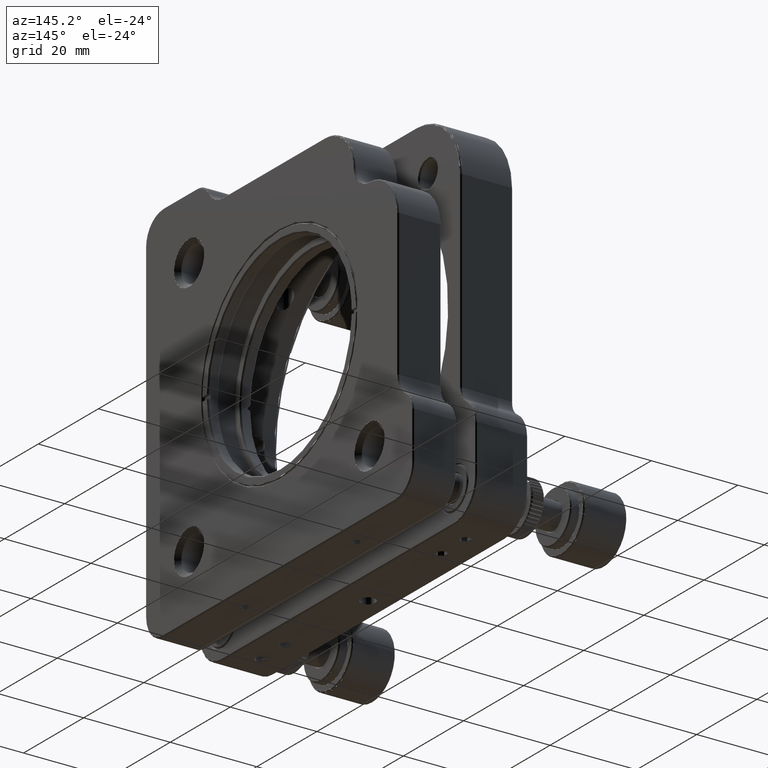
[diagram: clean part render]
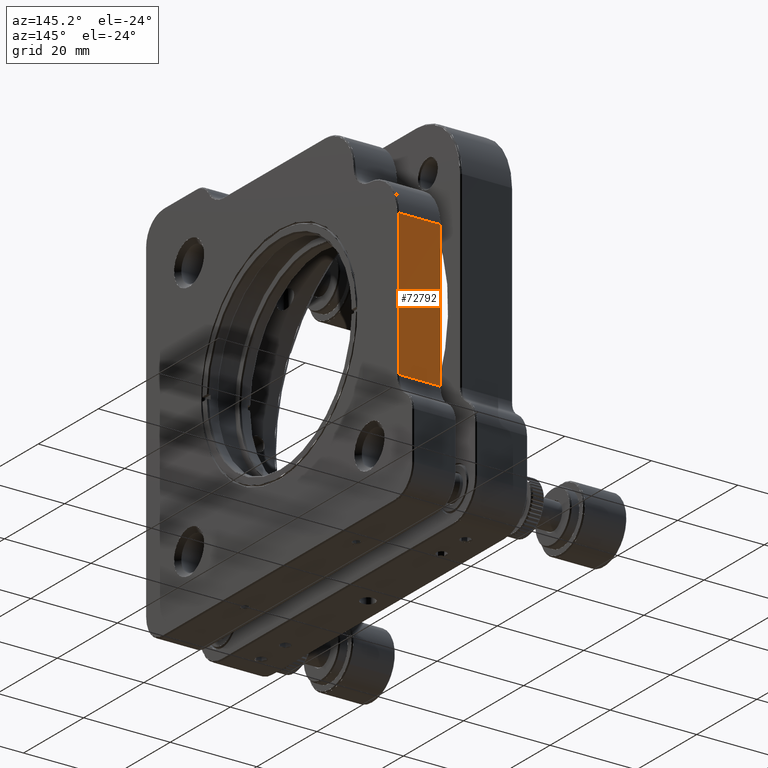
[diagram: same view with one face highlighted and labeled with its STEP entity id]
A machine part, auxiliary view. The second image highlights one B-rep face of the part: STEP entity #72792.
In plain terms, the highlighted planar face has unit normal (-0, 1, 0).
Its self-contained STEP definition (entity closure, byte-faithful):
#329 = VECTOR ( 'NONE', #97559, 1000.000000000000000 ) ;
#7531 = AXIS2_PLACEMENT_3D ( 'NONE', #96576, #94792, #115367 ) ;
#7884 = EDGE_LOOP ( 'NONE', ( #80084, #80278, #101519, #13790 ) ) ;
#10212 = CARTESIAN_POINT ( 'NONE',  ( -5.080910080472739843, 31.26806748824045101, 70.00833564943509657 ) ) ;
#11468 = DIRECTION ( 'NONE',  ( 1.000000000000000000, 0.000000000000000000, 0.000000000000000000 ) ) ;
#11967 = FACE_OUTER_BOUND ( 'NONE', #7884, .T. ) ;
#13790 = ORIENTED_EDGE ( 'NONE', *, *, #19798, .T. ) ;
#14419 = VERTEX_POINT ( 'NONE', #10212 ) ;
#14727 = EDGE_CURVE ( 'NONE', #58570, #23217, #107457, .T. ) ;
#19798 = EDGE_CURVE ( 'NONE', #14419, #58570, #76161, .T. ) ;
#20225 = EDGE_CURVE ( 'NONE', #99430, #14419, #87170, .T. ) ;
#23068 = CARTESIAN_POINT ( 'NONE',  ( -5.080910080472739843, 31.26806748824045101, 53.22630377971709947 ) ) ;
#23217 = VERTEX_POINT ( 'NONE', #49258 ) ;
#23813 = LINE ( 'NONE', #52793, #329 ) ;
#24377 = VECTOR ( 'NONE', #24618, 1000.000000000000000 ) ;
#24618 = DIRECTION ( 'NONE',  ( 0.000000000000000000, 0.000000000000000000, -1.000000000000000000 ) ) ;
#32507 = CARTESIAN_POINT ( 'NONE',  ( 4.419089919527245058, 31.26806748824045101, 53.22630377971709947 ) ) ;
#42152 = PLANE ( 'NONE',  #7531 ) ;
#44163 = VECTOR ( 'NONE', #115615, 1000.000000000000000 ) ;
#47737 = CARTESIAN_POINT ( 'NONE',  ( -0.3309100804727470035, 31.26806748824045101, 70.00833564943509657 ) ) ;
#49258 = CARTESIAN_POINT ( 'NONE',  ( 4.419089919527245058, 31.26806748824045101, 36.44427190999914501 ) ) ;
#52793 = CARTESIAN_POINT ( 'NONE',  ( -0.3309100804727470035, 31.26806748824045101, 36.44427190999914501 ) ) ;
#58570 = VERTEX_POINT ( 'NONE', #85612 ) ;
#72792 = ADVANCED_FACE ( 'NONE', ( #11967 ), #42152, .T. ) ;
#76161 = LINE ( 'NONE', #47737, #100171 ) ;
#80084 = ORIENTED_EDGE ( 'NONE', *, *, #14727, .T. ) ;
#80278 = ORIENTED_EDGE ( 'NONE', *, *, #112809, .T. ) ;
#85612 = CARTESIAN_POINT ( 'NONE',  ( 4.419089919527245058, 31.26806748824045101, 70.00833564943509657 ) ) ;
#87170 = LINE ( 'NONE', #23068, #44163 ) ;
#94792 = DIRECTION ( 'NONE',  ( -0.000000000000000000, 1.000000000000000000, 0.000000000000000000 ) ) ;
#96576 = CARTESIAN_POINT ( 'NONE',  ( -6.032110080472739888, 31.26806748824045101, 73.36594202337870740 ) ) ;
#97559 = DIRECTION ( 'NONE',  ( -1.000000000000000000, 0.000000000000000000, 0.000000000000000000 ) ) ;
#99430 = VERTEX_POINT ( 'NONE', #109154 ) ;
#100171 = VECTOR ( 'NONE', #11468, 1000.000000000000000 ) ;
#101519 = ORIENTED_EDGE ( 'NONE', *, *, #20225, .T. ) ;
#107457 = LINE ( 'NONE', #32507, #24377 ) ;
#109154 = CARTESIAN_POINT ( 'NONE',  ( -5.080910080472739843, 31.26806748824045101, 36.44427190999914501 ) ) ;
#112809 = EDGE_CURVE ( 'NONE', #23217, #99430, #23813, .T. ) ;
#115367 = DIRECTION ( 'NONE',  ( 1.000000000000000000, 0.000000000000000000, 0.000000000000000000 ) ) ;
#115615 = DIRECTION ( 'NONE',  ( 0.000000000000000000, 0.000000000000000000, 1.000000000000000000 ) ) ;